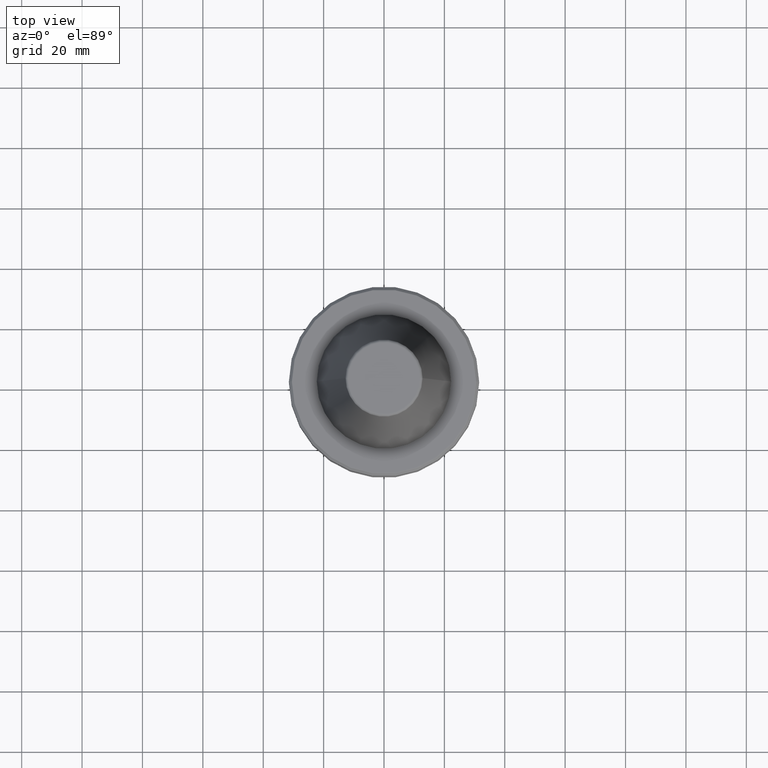
[diagram: clean part render]
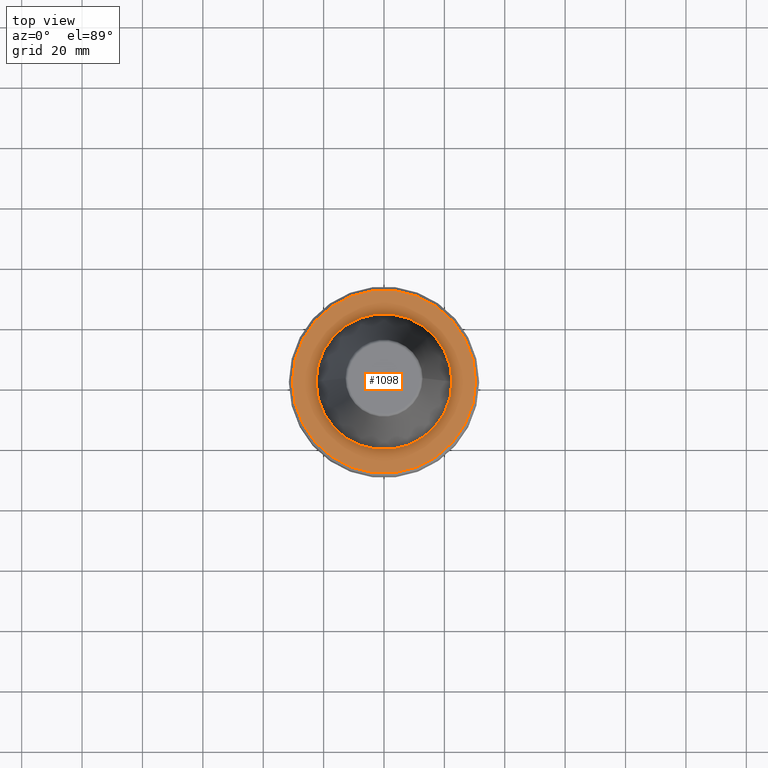
[diagram: same view with one face highlighted and labeled with its STEP entity id]
A machine part, top view. The second image highlights one B-rep face of the part: STEP entity #1098.
In plain terms, the highlighted planar face has unit normal (0, -0, 1).
Its self-contained STEP definition (entity closure, byte-faithful):
#43 = CIRCLE ( 'NONE', #1022, 30.33431457505076200 ) ;
#51 = AXIS2_PLACEMENT_3D ( 'NONE', #82, #269, #700 ) ;
#55 = CARTESIAN_POINT ( 'NONE',  ( 22.50000000000000000, 0.0000000000000000000, -2.000000000000001300 ) ) ;
#82 = CARTESIAN_POINT ( 'NONE',  ( 0.0000000000000000000, 0.0000000000000000000, -2.000000000000001800 ) ) ;
#96 = ORIENTED_EDGE ( 'NONE', *, *, #862, .F. ) ;
#102 = FACE_OUTER_BOUND ( 'NONE', #335, .T. ) ;
#186 = CIRCLE ( 'NONE', #51, 30.33431457505076200 ) ;
#196 = AXIS2_PLACEMENT_3D ( 'NONE', #401, #1089, #354 ) ;
#200 = DIRECTION ( 'NONE',  ( -0.0000000000000000000, -0.0000000000000000000, 1.000000000000000000 ) ) ;
#236 = EDGE_CURVE ( 'NONE', #944, #1042, #1021, .T. ) ;
#269 = DIRECTION ( 'NONE',  ( -0.0000000000000000000, -0.0000000000000000000, 1.000000000000000000 ) ) ;
#335 = EDGE_LOOP ( 'NONE', ( #1256, #434 ) ) ;
#339 = VERTEX_POINT ( 'NONE', #549 ) ;
#354 = DIRECTION ( 'NONE',  ( 1.000000000000000000, 0.0000000000000000000, 0.0000000000000000000 ) ) ;
#399 = CARTESIAN_POINT ( 'NONE',  ( 0.0000000000000000000, 0.0000000000000000000, -2.000000000000001800 ) ) ;
#401 = CARTESIAN_POINT ( 'NONE',  ( 0.0000000000000000000, 0.0000000000000000000, -2.000000000000001800 ) ) ;
#417 = DIRECTION ( 'NONE',  ( 1.000000000000000000, 0.0000000000000000000, 0.0000000000000000000 ) ) ;
#418 = CIRCLE ( 'NONE', #196, 22.50000000000000000 ) ;
#434 = ORIENTED_EDGE ( 'NONE', *, *, #1175, .T. ) ;
#519 = DIRECTION ( 'NONE',  ( 0.0000000000000000000, -0.0000000000000000000, 1.000000000000000000 ) ) ;
#549 = CARTESIAN_POINT ( 'NONE',  ( 30.33431457505076200, 0.0000000000000000000, -2.000000000000001800 ) ) ;
#671 = DIRECTION ( 'NONE',  ( 1.000000000000000000, 0.0000000000000000000, 0.0000000000000000000 ) ) ;
#695 = AXIS2_PLACEMENT_3D ( 'NONE', #779, #519, #417 ) ;
#700 = DIRECTION ( 'NONE',  ( 1.000000000000000000, 0.0000000000000000000, 0.0000000000000000000 ) ) ;
#779 = CARTESIAN_POINT ( 'NONE',  ( 0.0000000000000000000, 0.0000000000000000000, -2.000000000000002700 ) ) ;
#812 = PLANE ( 'NONE',  #695 ) ;
#827 = VERTEX_POINT ( 'NONE', #942 ) ;
#831 = EDGE_CURVE ( 'NONE', #339, #827, #186, .T. ) ;
#862 = EDGE_CURVE ( 'NONE', #1042, #944, #418, .T. ) ;
#896 = FACE_BOUND ( 'NONE', #1179, .T. ) ;
#942 = CARTESIAN_POINT ( 'NONE',  ( -30.33431457505076200, 3.732201245991191800E-015, -2.000000000000001800 ) ) ;
#944 = VERTEX_POINT ( 'NONE', #55 ) ;
#946 = CARTESIAN_POINT ( 'NONE',  ( 0.0000000000000000000, 0.0000000000000000000, -2.000000000000001800 ) ) ;
#962 = DIRECTION ( 'NONE',  ( -0.0000000000000000000, -0.0000000000000000000, 1.000000000000000000 ) ) ;
#976 = DIRECTION ( 'NONE',  ( 1.000000000000000000, 0.0000000000000000000, 0.0000000000000000000 ) ) ;
#1008 = ORIENTED_EDGE ( 'NONE', *, *, #236, .F. ) ;
#1021 = CIRCLE ( 'NONE', #1126, 22.50000000000000000 ) ;
#1022 = AXIS2_PLACEMENT_3D ( 'NONE', #946, #962, #671 ) ;
#1042 = VERTEX_POINT ( 'NONE', #1063 ) ;
#1063 = CARTESIAN_POINT ( 'NONE',  ( -22.50000000000000000, 2.755455298081544800E-015, -2.000000000000001300 ) ) ;
#1089 = DIRECTION ( 'NONE',  ( -0.0000000000000000000, -0.0000000000000000000, 1.000000000000000000 ) ) ;
#1098 = ADVANCED_FACE ( 'NONE', ( #102, #896 ), #812, .T. ) ;
#1126 = AXIS2_PLACEMENT_3D ( 'NONE', #399, #200, #976 ) ;
#1175 = EDGE_CURVE ( 'NONE', #827, #339, #43, .T. ) ;
#1179 = EDGE_LOOP ( 'NONE', ( #1008, #96 ) ) ;
#1256 = ORIENTED_EDGE ( 'NONE', *, *, #831, .T. ) ;